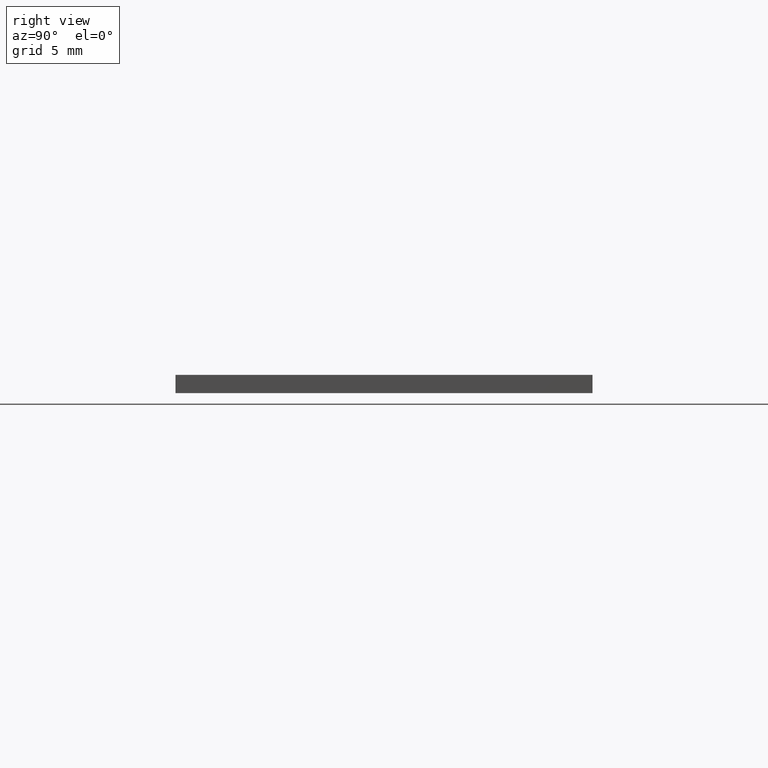
[diagram: clean part render]
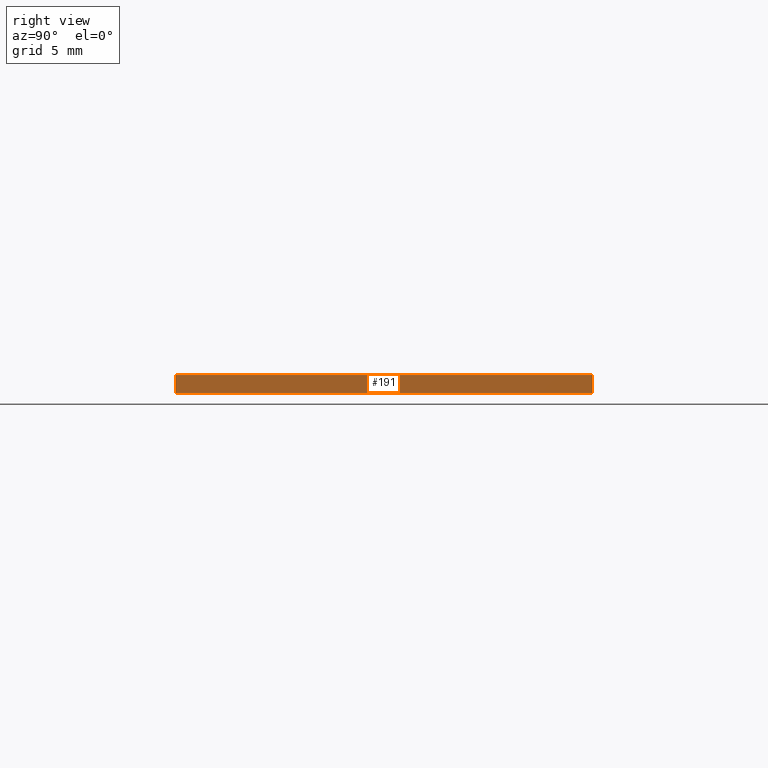
[diagram: same view with one face highlighted and labeled with its STEP entity id]
A machine part, right view. The second image highlights one B-rep face of the part: STEP entity #191.
In plain terms, the highlighted planar face has unit normal (-1, 0, 0).
Its self-contained STEP definition (entity closure, byte-faithful):
#5 = DIRECTION ( 'NONE',  ( -0.000000000000000000, -0.000000000000000000, -1.000000000000000000 ) ) ;
#6 = CARTESIAN_POINT ( 'NONE',  ( 36.00000000000000000, 0.000000000000000000, 1.100000000000000089 ) ) ;
#7 = ORIENTED_EDGE ( 'NONE', *, *, #134, .F. ) ;
#8 = VECTOR ( 'NONE', #13, 1000.000000000000000 ) ;
#13 = DIRECTION ( 'NONE',  ( -0.000000000000000000, -0.000000000000000000, -1.000000000000000000 ) ) ;
#17 = LINE ( 'NONE', #149, #173 ) ;
#18 = EDGE_CURVE ( 'NONE', #85, #150, #17, .T. ) ;
#22 = EDGE_CURVE ( 'NONE', #113, #47, #128, .T. ) ;
#43 = DIRECTION ( 'NONE',  ( 0.000000000000000000, 0.000000000000000000, 1.000000000000000000 ) ) ;
#47 = VERTEX_POINT ( 'NONE', #157 ) ;
#57 = CARTESIAN_POINT ( 'NONE',  ( 36.00000000000000000, 25.00000000000000000, 0.000000000000000000 ) ) ;
#63 = PLANE ( 'NONE',  #73 ) ;
#72 = DIRECTION ( 'NONE',  ( -1.000000000000000000, 0.000000000000000000, 0.000000000000000000 ) ) ;
#73 = AXIS2_PLACEMENT_3D ( 'NONE', #202, #72, #43 ) ;
#81 = EDGE_LOOP ( 'NONE', ( #103, #159, #7, #172 ) ) ;
#85 = VERTEX_POINT ( 'NONE', #143 ) ;
#88 = DIRECTION ( 'NONE',  ( 0.000000000000000000, 1.000000000000000000, 0.000000000000000000 ) ) ;
#91 = VECTOR ( 'NONE', #199, 1000.000000000000000 ) ;
#103 = ORIENTED_EDGE ( 'NONE', *, *, #161, .T. ) ;
#107 = CARTESIAN_POINT ( 'NONE',  ( 36.00000000000000000, 0.000000000000000000, 1.100000000000000089 ) ) ;
#113 = VERTEX_POINT ( 'NONE', #186 ) ;
#128 = LINE ( 'NONE', #6, #8 ) ;
#134 = EDGE_CURVE ( 'NONE', #113, #85, #136, .T. ) ;
#135 = LINE ( 'NONE', #151, #91 ) ;
#136 = LINE ( 'NONE', #107, #152 ) ;
#143 = CARTESIAN_POINT ( 'NONE',  ( 36.00000000000000000, 25.00000000000000000, 1.100000000000000089 ) ) ;
#149 = CARTESIAN_POINT ( 'NONE',  ( 36.00000000000000000, 25.00000000000000000, 1.100000000000000089 ) ) ;
#150 = VERTEX_POINT ( 'NONE', #57 ) ;
#151 = CARTESIAN_POINT ( 'NONE',  ( 36.00000000000000000, 0.000000000000000000, 0.000000000000000000 ) ) ;
#152 = VECTOR ( 'NONE', #88, 1000.000000000000000 ) ;
#157 = CARTESIAN_POINT ( 'NONE',  ( 36.00000000000000000, 0.000000000000000000, 0.000000000000000000 ) ) ;
#159 = ORIENTED_EDGE ( 'NONE', *, *, #18, .F. ) ;
#161 = EDGE_CURVE ( 'NONE', #47, #150, #135, .T. ) ;
#172 = ORIENTED_EDGE ( 'NONE', *, *, #22, .T. ) ;
#173 = VECTOR ( 'NONE', #5, 1000.000000000000000 ) ;
#179 = FACE_OUTER_BOUND ( 'NONE', #81, .T. ) ;
#186 = CARTESIAN_POINT ( 'NONE',  ( 36.00000000000000000, 0.000000000000000000, 1.100000000000000089 ) ) ;
#191 = ADVANCED_FACE ( 'NONE', ( #179 ), #63, .F. ) ;
#199 = DIRECTION ( 'NONE',  ( 0.000000000000000000, 1.000000000000000000, 0.000000000000000000 ) ) ;
#202 = CARTESIAN_POINT ( 'NONE',  ( 36.00000000000000000, 0.000000000000000000, 1.100000000000000089 ) ) ;